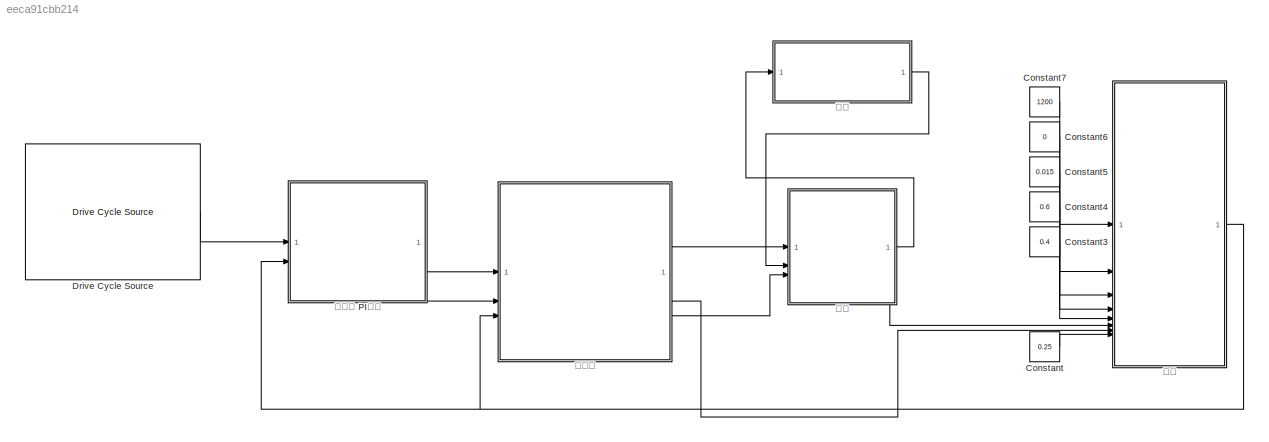
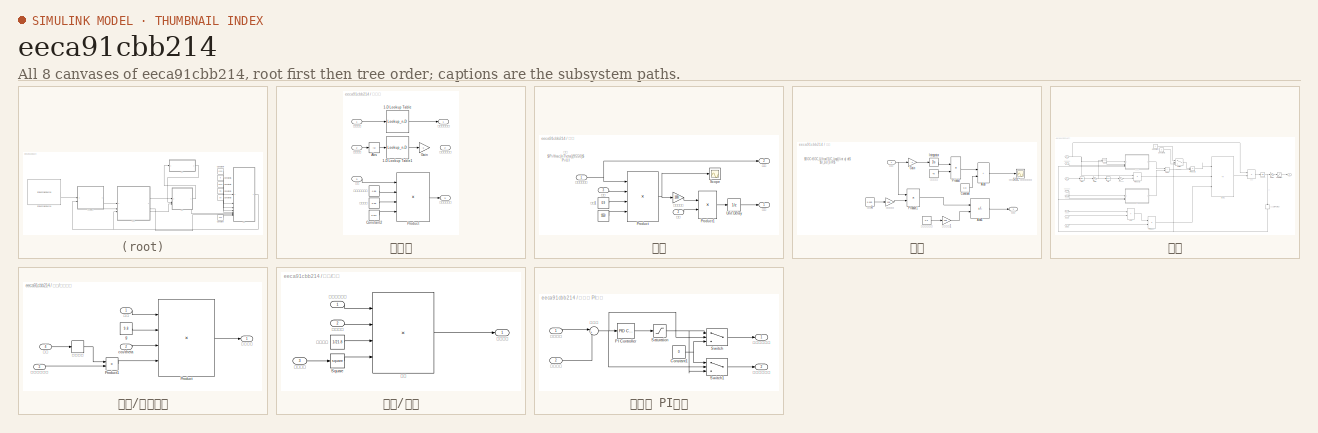
[diagram: thumbnail index - all 8 canvases of the model, root first then tree order]
MODEL slx_eeca91cbb214
KIND model
CONFIG AbsTol = auto
CONFIG EnableMultiTasking = off
CONFIG FixedStep = auto
CONFIG MaxStep = auto
CONFIG MinStep = auto
CONFIG RelTol = 1e-3
CONFIG SampleTimeConstraint = Unconstrained
CONFIG SolverName = VariableStepAuto
CONFIG StartTime = 0.0
CONFIG StopTime = 10.0
BLOCK [Constant] Constant
  Value = 0.25
BLOCK [Constant] Constant3
  Value = 0.4
BLOCK [Constant] Constant4
  Value = 0.6
BLOCK [Constant] Constant5
  Value = 0.015
BLOCK [Constant] Constant6
  Value = 0
BLOCK [Constant] Constant7
  Value = 1200
BLOCK [Reference] Drive Cycle Source  REF=autolibshared/Drive Cycle Source
  AttributesFormatString = %<cycleVar> (%<tfinal>)
  LibrarySourceBlock = autolibscenario/Drive Cycle Source
  SourceBlock = autolibshared/Drive Cycle Source
  SourceType = Drive Cycle Source
BLOCK [SubSystem] 控制器
BLOCK [Lookup_n-D] 控制器/1-D Lookup Table
  BreakpointsForDimension1 = [0:1]
  InputPortMap = u0
  InternalRulePriority = Speed
  NumberOfTableDimensions = 1
  RndMeth = Simplest
  Table = [0 200]
BLOCK [Lookup_n-D] 控制器/1-D Lookup Table1
  BreakpointsForDimension1 = [0:1]
  InputPortMap = u0
  InternalRulePriority = Speed
  NumberOfTableDimensions = 1
  RndMeth = Simplest
  Table = [0 3000]
BLOCK [Abs] 控制器/Abs
  SaturateOnIntegerOverflow = off
BLOCK [Constant] 控制器/Constant2
  Value = 0.377
BLOCK [Gain] 控制器/Gain
  Gain = -1
BLOCK [Product] 控制器/Product
  Inputs = **//
BLOCK [Constant] 控制器/主减速器传动比
  NameLocation = left
  Value = 4.88
BLOCK [Inport] 控制器/制动信号
  Port = 2
BLOCK [Outport] 控制器/摩擦制动力矩
  Port = 2
BLOCK [Inport] 控制器/油门信号
BLOCK [Outport] 控制器/电机需求转矩
BLOCK [Outport] 控制器/电机需求转速
  Port = 3
BLOCK [Constant] 控制器/车轮半径
  NameLocation = left
  Value = 0.25
BLOCK [Inport] 控制器/车速
  Port = 3
BLOCK [SubSystem] 电机
BLOCK [Constant] 电机/ 
  NameLocation = left
  Value = 9550
BLOCK [Product] 电机/Product
  Inputs = ***/
BLOCK [Product] 电机/Product1
  Inputs = */
BLOCK [Scope] 电机/Scope
  Floating = off
  NumInputPorts = 1
  ScopeSpecificationString = Simulink.scopes.TimeScopeBlockCfg('CurrentConfiguration', extmgr.ConfigurationSet(extmgr.Configuration('Core','General UI',true),extmgr.Configuration('Core','Source UI',true),extmgr.Configuration('Sources','WiredSimulink',true),extmgr.Configuration('Visuals','Time Domain',true),extmgr.Configuration('Tools','Plot Navigation',true),extmgr.Configuration('Tools','Measurements',true)),'Version','2022b'...<+1ch>
BLOCK [UnitDelay] 电机/Unit Delay
  HasFrameUpgradeWarning = on
  SampleTime = -1
BLOCK [Gain] 电机/千瓦变成瓦
  Gain = 1000
BLOCK [Inport] 电机/电压
  Port = 2
BLOCK [Inport] 电机/电机需求转矩
BLOCK [Outport] 电机/电流
BLOCK [Outport] 电机/转矩
  Port = 2
BLOCK [Inport] 电机/转速
  Port = 3
BLOCK [Constant] 电机/转速1
  Value = 0.9
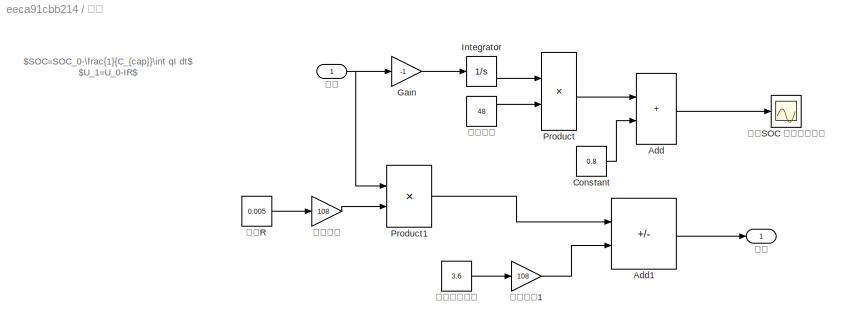
BLOCK [SubSystem] 电池
BLOCK [Sum] 电池/Add
  IconShape = rectangular
BLOCK [Sum] 电池/Add1
  IconShape = rectangular
  Inputs = -+
BLOCK [Constant] 电池/Constant
  Value = 0.8
BLOCK [Gain] 电池/Gain
  Gain = -1
BLOCK [Integrator] 电池/Integrator
BLOCK [Product] 电池/Product
  Inputs = */
BLOCK [Product] 电池/Product1
BLOCK [Constant] 电池/单个电池电压
  Value = 3.6
BLOCK [Scope] 电池/显示SOC 当前电池状态
  Floating = off
  NumInputPorts = 1
  ScopeSpecificationString = Simulink.scopes.TimeScopeBlockCfg('CurrentConfiguration', extmgr.ConfigurationSet(extmgr.Configuration('Core','General UI',true),extmgr.Configuration('Core','Source UI',true),extmgr.Configuration('Sources','WiredSimulink',true,'DataLoggingVariableName','ScopeData1'),extmgr.Configuration('Visuals','Time Domain',true),extmgr.Configuration('Tools','Plot Navigation',true),extmgr.Configuration('Tools',...<+40ch>
BLOCK [Outport] 电池/电压 
BLOCK [Constant] 电池/电池容量
  Value = 48
BLOCK [Gain] 电池/电池数量
  Gain = 108
BLOCK [Gain] 电池/电池数量1
  Gain = 108
BLOCK [Inport] 电池/电流
BLOCK [Constant] 电池/电阻R
  Value = 0.005
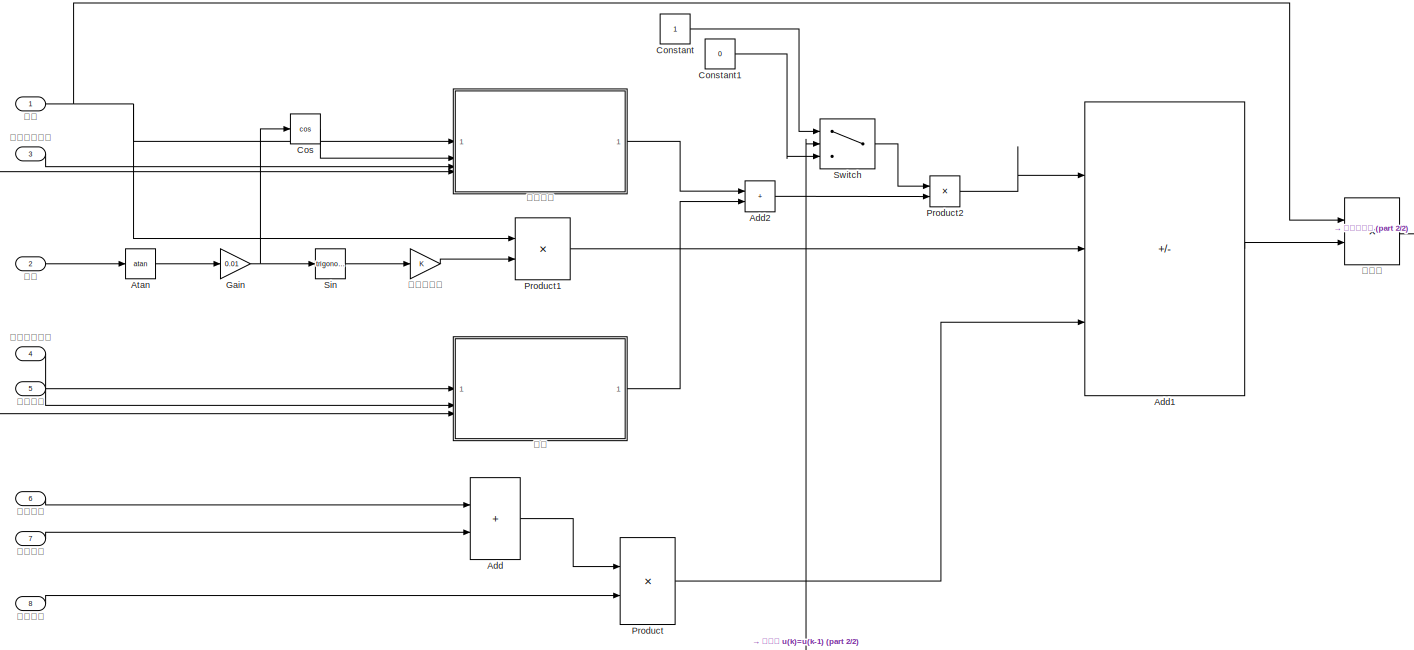
[diagram: 车身 - part 1/2, most of the canvas]
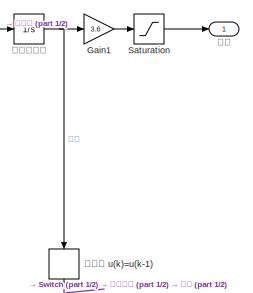
[diagram: 车身 - part 2/2, middle right region]
BLOCK [SubSystem] 车身
BLOCK [Sum] 车身/Add
  IconShape = rectangular
BLOCK [Sum] 车身/Add1
  IconShape = rectangular
  Inputs = --+
BLOCK [Sum] 车身/Add2
  IconShape = rectangular
BLOCK [Trigonometry] 车身/Atan
  Operator = atan
BLOCK [Constant] 车身/Constant
BLOCK [Constant] 车身/Constant1
  Value = 0
BLOCK [Trigonometry] 车身/Cos
  Operator = cos
BLOCK [Gain] 车身/Gain
  Gain = 0.01
BLOCK [Gain] 车身/Gain1
  Gain = 3.6
BLOCK [Product] 车身/Product
  Inputs = */
  NameLocation = left
BLOCK [Product] 车身/Product1
BLOCK [Product] 车身/Product2
BLOCK [Saturate] 车身/Saturation
  LowerLimit = 0
  UpperLimit = 10000
BLOCK [Trigonometry] 车身/Sin
BLOCK [Switch] 车身/Switch
  Criteria = u2 > Threshold
  InputSameDT = off
  SaturateOnIntegerOverflow = off
BLOCK [Memory] 车身/代数环 u(k)=u(k-1)
  NameLocation = left
BLOCK [Inport] 车身/制动力矩
  Port = 7
BLOCK [Product] 车身/加速度
  Inputs = /*
BLOCK [Inport] 车身/坡度
  Port = 2
BLOCK [SubSystem] 车身/滚动阻力
BLOCK [Product] 车身/滚动阻力/Product
  Inputs = 4
BLOCK [Product] 车身/滚动阻力/Product1
BLOCK [Inport] 车身/滚动阻力/cos\theta
  Port = 2
BLOCK [Constant] 车身/滚动阻力/g
  Value = 9.8
BLOCK [Outport] 车身/滚动阻力/滚动阻力
BLOCK [Inport] 车身/滚动阻力/滚动阻力系数
  Port = 3
BLOCK [Inport] 车身/滚动阻力/质量
BLOCK [Inport] 车身/滚动阻力/车速
  Port = 4
BLOCK [Signum] 车身/滚动阻力/过零检测
BLOCK [Inport] 车身/滚动阻力系数
  Port = 3
BLOCK [Integrator] 车身/积分得速度
BLOCK [Inport] 车身/空气阻力系数
  Port = 4
BLOCK [Inport] 车身/质量
BLOCK [Inport] 车身/车轮半径
  Port = 8
BLOCK [Outport] 车身/车速
BLOCK [Inport] 车身/迎风面积
  Port = 5
BLOCK [Gain] 车身/重力加速度
BLOCK [SubSystem] 车身/风阻
BLOCK [Math] 车身/风阻/Square
  Operator = square
BLOCK [Constant] 车身/风阻/空气密度
  NameLocation = left
  Value = 1/21.8
BLOCK [Outport] 车身/风阻/空气阻力
BLOCK [Inport] 车身/风阻/空气阻力系数
BLOCK [Inport] 车身/风阻/车辆速度
  Port = 3
BLOCK [Inport] 车身/风阻/迎风面积
  Port = 2
BLOCK [Product] 车身/风阻/风阻
  Inputs = 4
BLOCK [Inport] 车身/驱动力矩
  Port = 6
BLOCK [SubSystem] 驾驶员 PI控制
BLOCK [Constant] 驾驶员 PI控制/Constant1
  Value = 0
BLOCK [Reference] 驾驶员 PI控制/PI Controller  REF=slpidlib/PID Controller
  LibrarySourceBlock = simulink/Continuous/PID Controller
  SourceBlock = slpidlib/PID Controller
  SourceType = PID 1dof
BLOCK [Saturate] 驾驶员 PI控制/Saturation
  LowerLimit = -1
  UpperLimit = 1
BLOCK [Switch] 驾驶员 PI控制/Switch
  Criteria = u2 > Threshold
  InputSameDT = off
  SaturateOnIntegerOverflow = off
BLOCK [Switch] 驾驶员 PI控制/Switch1
  Criteria = u2 > Threshold
  InputSameDT = off
  SaturateOnIntegerOverflow = off
BLOCK [Outport] 驾驶员 PI控制/制动踏板信号
  Port = 2
BLOCK [Outport] 驾驶员 PI控制/加速踏板信号
BLOCK [Inport] 驾驶员 PI控制/实际车速
  Port = 2
BLOCK [Inport] 驾驶员 PI控制/目标车速
BLOCK [Sum] 驾驶员 PI控制/速度差
  Inputs = |+-
  NameLocation = top
ANNOTATION 电机: 功率 $P=\frac{nT\eta}{9550}$ P=U.I
ANNOTATION 电池: $SOC=SOC_0-\frac{1}{C_{cap}}\int qI dt$ $U_1=U_0-IR$
LINE Constant3:1 -> 车身:5
LINE Constant4:1 -> 车身:4
LINE Constant5:1 -> 车身:3
LINE Constant6:1 -> 车身:2
LINE Constant7:1 -> 车身:1
LINE Constant:1 -> 车身:8
LINE Drive Cycle Source:1 -> 驾驶员 PI控制:1
LINE 控制器/1-D Lookup Table1:1 -> 控制器/Gain:1
LINE 控制器/1-D Lookup Table:1 -> 控制器/电机需求转矩:1
LINE 控制器/Abs:1 -> 控制器/1-D Lookup Table1:1
LINE 控制器/Constant2:1 -> 控制器/Product:4
LINE 控制器/Product:1 -> 控制器/电机需求转速:1
LINE 控制器/主减速器传动比:1 -> 控制器/Product:2
LINE 控制器/制动信号:1 -> 控制器/Abs:1
LINE 控制器/油门信号:1 -> 控制器/1-D Lookup Table:1
LINE 控制器/车轮半径:1 -> 控制器/Product:3
LINE 控制器/车速:1 -> 控制器/Product:1
LINE 控制器:1 -> 电机:1
LINE 控制器:2 -> 车身:7
LINE 控制器:3 -> 电机:3
LINE 电机/ :1 -> 电机/Product:4
LINE 电机/Product1:1 -> 电机/Unit Delay:1
NET 电机/Product:1 -> 电机/Scope:1, 电机/千瓦变成瓦:1
LINE 电机/Unit Delay:1 -> 电机/电流:1
LINE 电机/千瓦变成瓦:1 -> 电机/Product1:1
LINE 电机/电压:1 -> 电机/Product1:2
NET 电机/电机需求转矩:1 -> 电机/Product:1, 电机/转矩:1
LINE 电机/转速1:1 -> 电机/Product:3
LINE 电机/转速:1 -> 电机/Product:2
LINE 电机:1 -> 电池:1
LINE 电机:2 -> 车身:6
LINE 电池/Add1:1 -> 电池/电压 :1
LINE 电池/Add:1 -> 电池/显示SOC 当前电池状态:1
LINE 电池/Constant:1 -> 电池/Add:2
LINE 电池/Gain:1 -> 电池/Integrator:1
LINE 电池/Integrator:1 -> 电池/Product:1
LINE 电池/Product1:1 -> 电池/Add1:1
LINE 电池/Product:1 -> 电池/Add:1
LINE 电池/单个电池电压:1 -> 电池/电池数量1:1
LINE 电池/电池容量:1 -> 电池/Product:2
LINE 电池/电池数量1:1 -> 电池/Add1:2
LINE 电池/电池数量:1 -> 电池/Product1:2
NET 电池/电流:1 -> 电池/Gain:1, 电池/Product1:1
LINE 电池/电阻R:1 -> 电池/电池数量:1
LINE 电池:1 -> 电机:2
LINE 车身/Add1:1 -> 车身/加速度:2
LINE 车身/Add2:1 -> 车身/Product2:2
LINE 车身/Add:1 -> 车身/Product:1
LINE 车身/Atan:1 -> 车身/Gain:1
LINE 车身/Constant1:1 -> 车身/Switch:3
LINE 车身/Constant:1 -> 车身/Switch:1
LINE 车身/Cos:1 -> 车身/滚动阻力:2
LINE 车身/Gain1:1 -> 车身/Saturation:1
NET 车身/Gain:1 -> 车身/Cos:1, 车身/Sin:1
LINE 车身/Product1:1 -> 车身/Add1:2
LINE 车身/Product2:1 -> 车身/Add1:1
LINE 车身/Product:1 -> 车身/Add1:3
LINE 车身/Saturation:1 -> 车身/车速:1
LINE 车身/Sin:1 -> 车身/重力加速度:1
LINE 车身/Switch:1 -> 车身/Product2:1
NET 车身/代数环 u(k)=u(k-1):1 -> 车身/Switch:2, 车身/滚动阻力:4, 车身/风阻:3
LINE 车身/制动力矩:1 -> 车身/Add:2
LINE 车身/加速度:1 -> 车身/积分得速度:1
LINE 车身/坡度:1 -> 车身/Atan:1
LINE 车身/滚动阻力/Product1:1 -> 车身/滚动阻力/Product:4
LINE 车身/滚动阻力/Product:1 -> 车身/滚动阻力/滚动阻力:1
LINE 车身/滚动阻力/cos\theta:1 -> 车身/滚动阻力/Product:3
LINE 车身/滚动阻力/g:1 -> 车身/滚动阻力/Product:2
LINE 车身/滚动阻力/滚动阻力系数:1 -> 车身/滚动阻力/Product1:2
LINE 车身/滚动阻力/质量:1 -> 车身/滚动阻力/Product:1
LINE 车身/滚动阻力/车速:1 -> 车身/滚动阻力/过零检测:1
LINE 车身/滚动阻力/过零检测:1 -> 车身/滚动阻力/Product1:1
LINE 车身/滚动阻力:1 -> 车身/Add2:1
LINE 车身/滚动阻力系数:1 -> 车身/滚动阻力:3
NET 车身/积分得速度:1 -> 车身/Gain1:1, 车身/代数环 u(k)=u(k-1):1
LINE 车身/空气阻力系数:1 -> 车身/风阻:1
NET 车身/质量:1 -> 车身/Product1:1, 车身/加速度:1, 车身/滚动阻力:1
LINE 车身/车轮半径:1 -> 车身/Product:2
LINE 车身/迎风面积:1 -> 车身/风阻:2
LINE 车身/重力加速度:1 -> 车身/Product1:2
LINE 车身/风阻/Square:1 -> 车身/风阻/风阻:4
LINE 车身/风阻/空气密度:1 -> 车身/风阻/风阻:3
LINE 车身/风阻/空气阻力系数:1 -> 车身/风阻/风阻:1
LINE 车身/风阻/车辆速度:1 -> 车身/风阻/Square:1
LINE 车身/风阻/迎风面积:1 -> 车身/风阻/风阻:2
LINE 车身/风阻/风阻:1 -> 车身/风阻/空气阻力:1
LINE 车身/风阻:1 -> 车身/Add2:2
LINE 车身/驱动力矩:1 -> 车身/Add:1
NET 车身:1 -> 控制器:3, 驾驶员 PI控制:2
NET 驾驶员 PI控制/Constant1:1 -> 驾驶员 PI控制/Switch1:1, 驾驶员 PI控制/Switch:3
LINE 驾驶员 PI控制/PI Controller:1 -> 驾驶员 PI控制/Saturation:1
NET 驾驶员 PI控制/Saturation:1 -> 驾驶员 PI控制/Switch1:3, 驾驶员 PI控制/Switch:1
LINE 驾驶员 PI控制/Switch1:1 -> 驾驶员 PI控制/制动踏板信号:1
LINE 驾驶员 PI控制/Switch:1 -> 驾驶员 PI控制/加速踏板信号:1
LINE 驾驶员 PI控制/实际车速:1 -> 驾驶员 PI控制/速度差:2
LINE 驾驶员 PI控制/目标车速:1 -> 驾驶员 PI控制/速度差:1
NET 驾驶员 PI控制/速度差:1 -> 驾驶员 PI控制/PI Controller:1, 驾驶员 PI控制/Switch1:2, 驾驶员 PI控制/Switch:2
LINE 驾驶员 PI控制:1 -> 控制器:1
LINE 驾驶员 PI控制:2 -> 控制器:2
note: NET lines group one-source signal fan-out (src -> all destinations, sorted); 1:1 wires keep LINE
